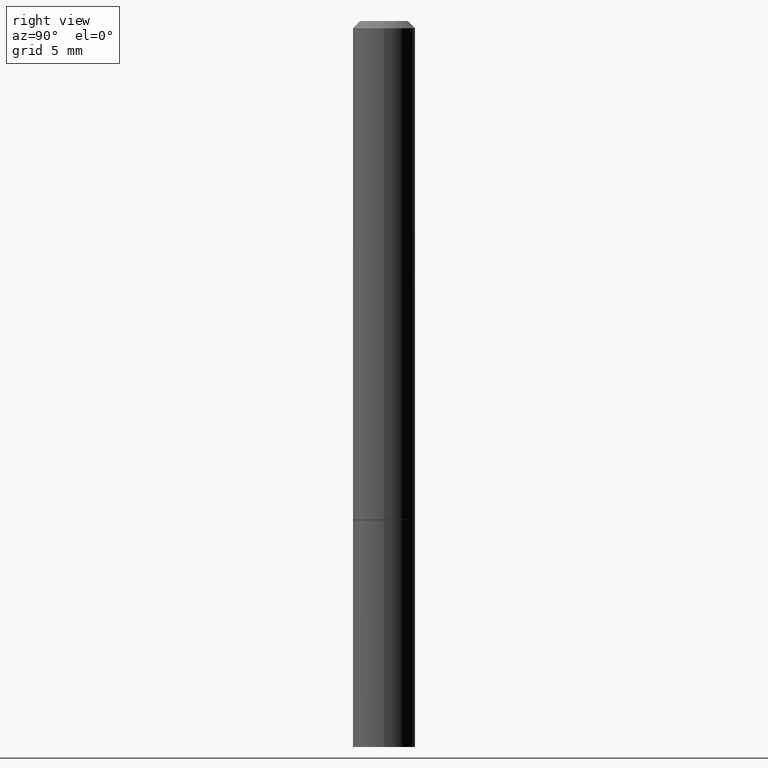
[diagram: clean part render]
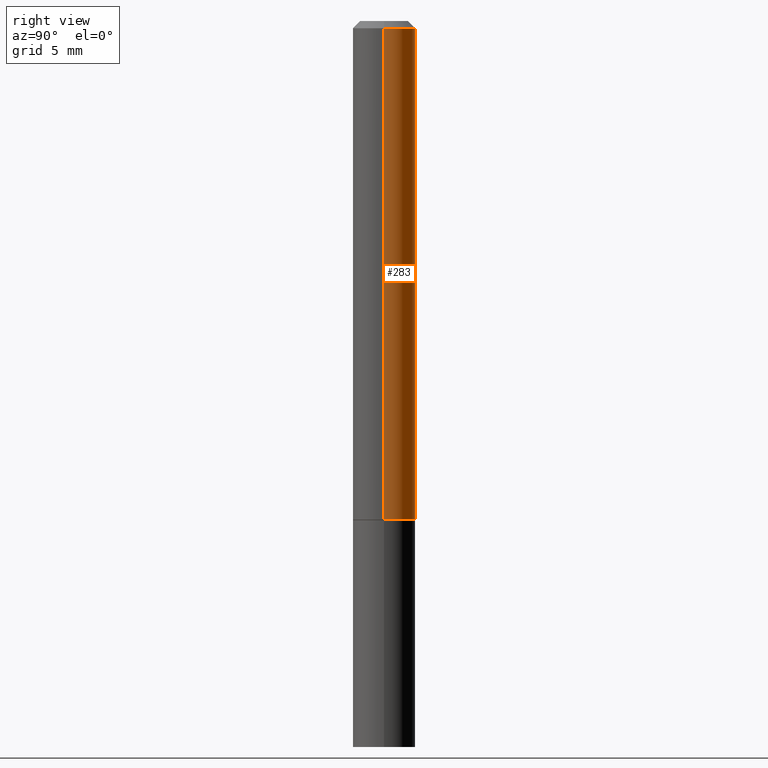
[diagram: same view with one face highlighted and labeled with its STEP entity id]
A machine part, right view. The second image highlights one B-rep face of the part: STEP entity #283.
In plain terms, the highlighted cylindrical surface (edge-blend (fillet) strip) has radius 2.1831 mm, axis along (-0, 0, 1).
Its self-contained STEP definition (entity closure, byte-faithful):
#1 = DIRECTION ( 'NONE',  ( -2.445468806185136877E-29, 3.491481338843145188E-15, 1.000000000000000000 ) ) ;
#5 = AXIS2_PLACEMENT_3D ( 'NONE', #143, #55, #198 ) ;
#11 = ORIENTED_EDGE ( 'NONE', *, *, #95, .F. ) ;
#19 = EDGE_CURVE ( 'NONE', #72, #337, #71, .T. ) ;
#26 = FACE_OUTER_BOUND ( 'NONE', #224, .T. ) ;
#34 = DIRECTION ( 'NONE',  ( 1.000000000000000000, -6.982962677686267499E-15, 0.000000000000000000 ) ) ;
#52 = VERTEX_POINT ( 'NONE', #267 ) ;
#55 = DIRECTION ( 'NONE',  ( -2.445468806185136597E-29, 3.491481338843145583E-15, 1.000000000000000000 ) ) ;
#70 = VECTOR ( 'NONE', #1, 39.37007874015748143 ) ;
#71 = CIRCLE ( 'NONE', #5, 0.08594999999999998475 ) ;
#72 = VERTEX_POINT ( 'NONE', #240 ) ;
#82 = DIRECTION ( 'NONE',  ( 1.000000000000000000, -6.982962677686267499E-15, 4.876176775795936353E-29 ) ) ;
#83 = AXIS2_PLACEMENT_3D ( 'NONE', #325, #170, #82 ) ;
#95 = EDGE_CURVE ( 'NONE', #164, #52, #110, .T. ) ;
#110 = CIRCLE ( 'NONE', #123, 0.08594999999999981821 ) ;
#113 = CARTESIAN_POINT ( 'NONE',  ( 0.08594999999999981821, -6.594894296853248617E-16, -0.02000000000000002123 ) ) ;
#123 = AXIS2_PLACEMENT_3D ( 'NONE', #362, #298, #34 ) ;
#138 = CARTESIAN_POINT ( 'NONE',  ( -0.08594999999999997087, -1.822851011787864341E-15, -1.373999999999999888 ) ) ;
#140 = EDGE_CURVE ( 'NONE', #337, #52, #386, .T. ) ;
#143 = CARTESIAN_POINT ( 'NONE',  ( 3.360074139698377778E-29, -4.797295359570481134E-15, -1.373999999999999888 ) ) ;
#145 = ORIENTED_EDGE ( 'NONE', *, *, #140, .T. ) ;
#160 = ORIENTED_EDGE ( 'NONE', *, *, #190, .F. ) ;
#164 = VERTEX_POINT ( 'NONE', #113 ) ;
#170 = DIRECTION ( 'NONE',  ( -2.445468806185136597E-29, 3.491481338843145583E-15, 1.000000000000000000 ) ) ;
#184 = DIRECTION ( 'NONE',  ( -2.445468806185136877E-29, 3.491481338843145188E-15, 1.000000000000000000 ) ) ;
#186 = LINE ( 'NONE', #269, #349 ) ;
#190 = EDGE_CURVE ( 'NONE', #72, #164, #186, .T. ) ;
#198 = DIRECTION ( 'NONE',  ( 1.000000000000000000, -6.982962677686261977E-15, 0.000000000000000000 ) ) ;
#224 = EDGE_LOOP ( 'NONE', ( #300, #145, #11, #160 ) ) ;
#240 = CARTESIAN_POINT ( 'NONE',  ( 0.08594999999999998475, -5.397481001717615360E-15, -1.373999999999999888 ) ) ;
#255 = CYLINDRICAL_SURFACE ( 'NONE', #83, 0.08594999999999990148 ) ;
#261 = CARTESIAN_POINT ( 'NONE',  ( -0.08594999999999990148, 6.107114813858054097E-16, -4.227824710074086685E-30 ) ) ;
#267 = CARTESIAN_POINT ( 'NONE',  ( -0.08594999999999981821, 5.303560153702704350E-16, -0.02000000000000002123 ) ) ;
#269 = CARTESIAN_POINT ( 'NONE',  ( 0.08594999999999990148, -6.001856421471340290E-16, 4.191073938796602335E-30 ) ) ;
#283 = ADVANCED_FACE ( 'NONE', ( #26 ), #255, .T. ) ;
#298 = DIRECTION ( 'NONE',  ( -2.445468806185136597E-29, 3.491481338843145583E-15, 1.000000000000000000 ) ) ;
#300 = ORIENTED_EDGE ( 'NONE', *, *, #19, .T. ) ;
#325 = CARTESIAN_POINT ( 'NONE',  ( 0.000000000000000000, 0.000000000000000000, 0.000000000000000000 ) ) ;
#337 = VERTEX_POINT ( 'NONE', #138 ) ;
#349 = VECTOR ( 'NONE', #184, 39.37007874015748143 ) ;
#362 = CARTESIAN_POINT ( 'NONE',  ( 4.890937612370278413E-31, -6.982962677686297772E-17, -0.02000000000000002123 ) ) ;
#386 = LINE ( 'NONE', #261, #70 ) ;